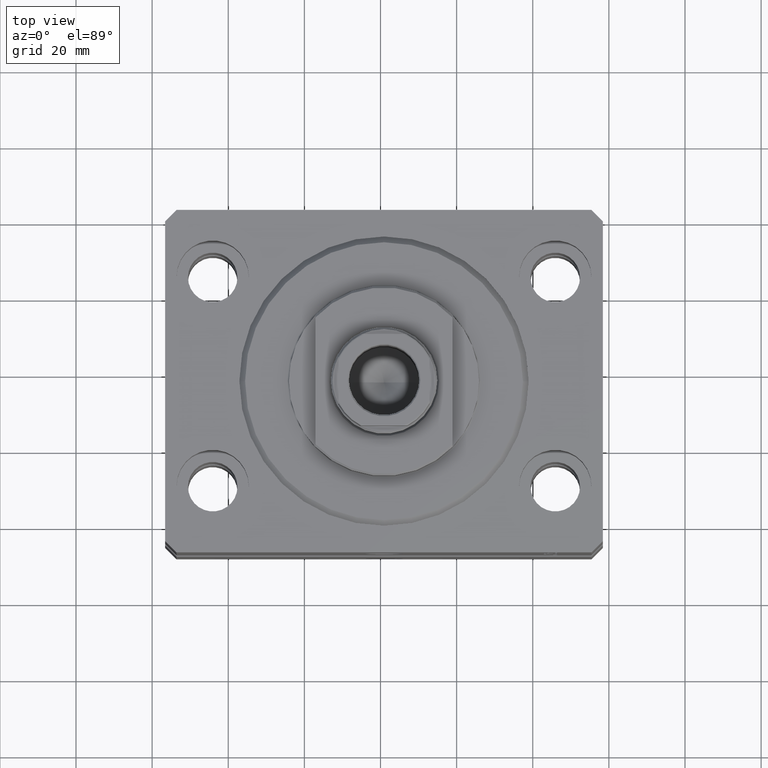
[diagram: clean part render]
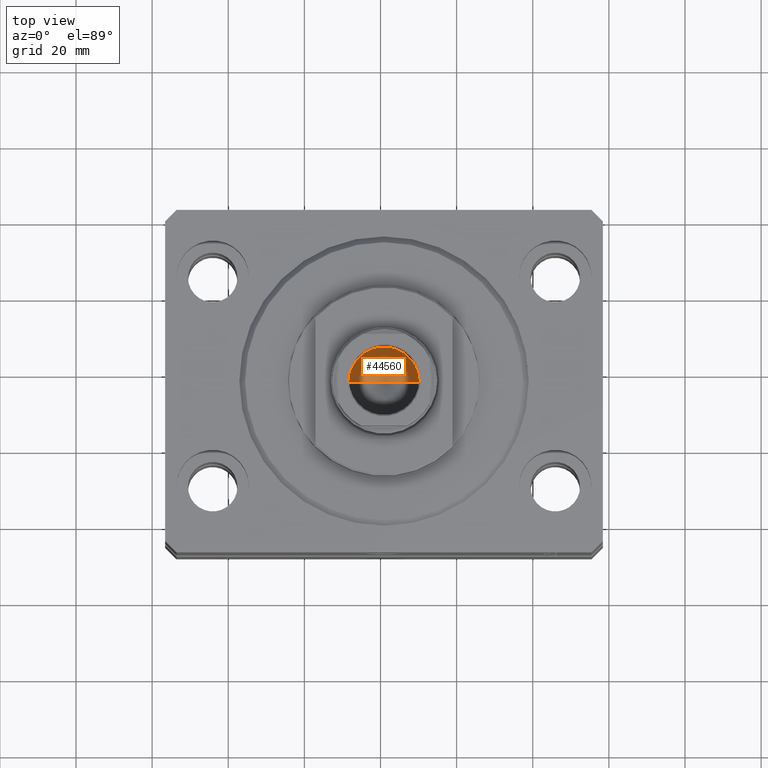
[diagram: same view with one face highlighted and labeled with its STEP entity id]
A machine part, top view. The second image highlights one B-rep face of the part: STEP entity #44560.
In plain terms, the highlighted conical surface has half-angle 59 deg.
Its self-contained STEP definition (entity closure, byte-faithful):
#626 = DIRECTION ( 'NONE',  ( 0.8571673007021117785, 0.000000000000000000, 0.5150380749100550437 ) ) ;
#1042 = VERTEX_POINT ( 'NONE', #30761 ) ;
#2319 = CARTESIAN_POINT ( 'NONE',  ( 0.000000000000000000, 0.000000000000000000, 72.00000000000001421 ) ) ;
#2678 = EDGE_LOOP ( 'NONE', ( #2811, #25053, #40358 ) ) ;
#2811 = ORIENTED_EDGE ( 'NONE', *, *, #5668, .F. ) ;
#5668 = EDGE_CURVE ( 'NONE', #7263, #1042, #19144, .T. ) ;
#6707 = CIRCLE ( 'NONE', #26765, 9.249999999999994671 ) ;
#7263 = VERTEX_POINT ( 'NONE', #24990 ) ;
#7345 = LINE ( 'NONE', #22014, #39263 ) ;
#8881 = CARTESIAN_POINT ( 'NONE',  ( -9.249999999999994671, 1.132798289211300909E-15, 72.00000000000001421 ) ) ;
#12763 = CARTESIAN_POINT ( 'NONE',  ( 0.000000000000000000, 0.000000000000000000, 72.00000000000001421 ) ) ;
#16953 = DIRECTION ( 'NONE',  ( -0.000000000000000000, -0.000000000000000000, 1.000000000000000000 ) ) ;
#19144 = LINE ( 'NONE', #8881, #40137 ) ;
#21841 = VERTEX_POINT ( 'NONE', #26158 ) ;
#22014 = CARTESIAN_POINT ( 'NONE',  ( 9.249999999999994671, 0.000000000000000000, 72.00000000000001421 ) ) ;
#23543 = DIRECTION ( 'NONE',  ( -0.8571673007021117785, 1.049727191138617956E-16, 0.5150380749100550437 ) ) ;
#24226 = EDGE_CURVE ( 'NONE', #7263, #21841, #7345, .T. ) ;
#24990 = CARTESIAN_POINT ( 'NONE',  ( -1.046994375366439223E-14, 0.000000000000000000, 66.44203927399506426 ) ) ;
#25053 = ORIENTED_EDGE ( 'NONE', *, *, #24226, .T. ) ;
#26158 = CARTESIAN_POINT ( 'NONE',  ( 9.249999999999994671, 0.000000000000000000, 72.00000000000001421 ) ) ;
#26341 = AXIS2_PLACEMENT_3D ( 'NONE', #2319, #45062, #41806 ) ;
#26765 = AXIS2_PLACEMENT_3D ( 'NONE', #12763, #16953, #34612 ) ;
#27831 = CONICAL_SURFACE ( 'NONE', #26341, 9.249999999999994671, 1.029744258676653423 ) ;
#30761 = CARTESIAN_POINT ( 'NONE',  ( -9.249999999999994671, 1.132798289211300909E-15, 72.00000000000001421 ) ) ;
#30905 = FACE_OUTER_BOUND ( 'NONE', #2678, .T. ) ;
#31465 = EDGE_CURVE ( 'NONE', #21841, #1042, #6707, .T. ) ;
#34612 = DIRECTION ( 'NONE',  ( 1.000000000000000000, 0.000000000000000000, 0.000000000000000000 ) ) ;
#39263 = VECTOR ( 'NONE', #626, 1000.000000000000000 ) ;
#40137 = VECTOR ( 'NONE', #23543, 1000.000000000000000 ) ;
#40358 = ORIENTED_EDGE ( 'NONE', *, *, #31465, .T. ) ;
#41806 = DIRECTION ( 'NONE',  ( 1.000000000000000000, 0.000000000000000000, 0.000000000000000000 ) ) ;
#44560 = ADVANCED_FACE ( 'NONE', ( #30905 ), #27831, .F. ) ;
#45062 = DIRECTION ( 'NONE',  ( -0.000000000000000000, -0.000000000000000000, 1.000000000000000000 ) ) ;